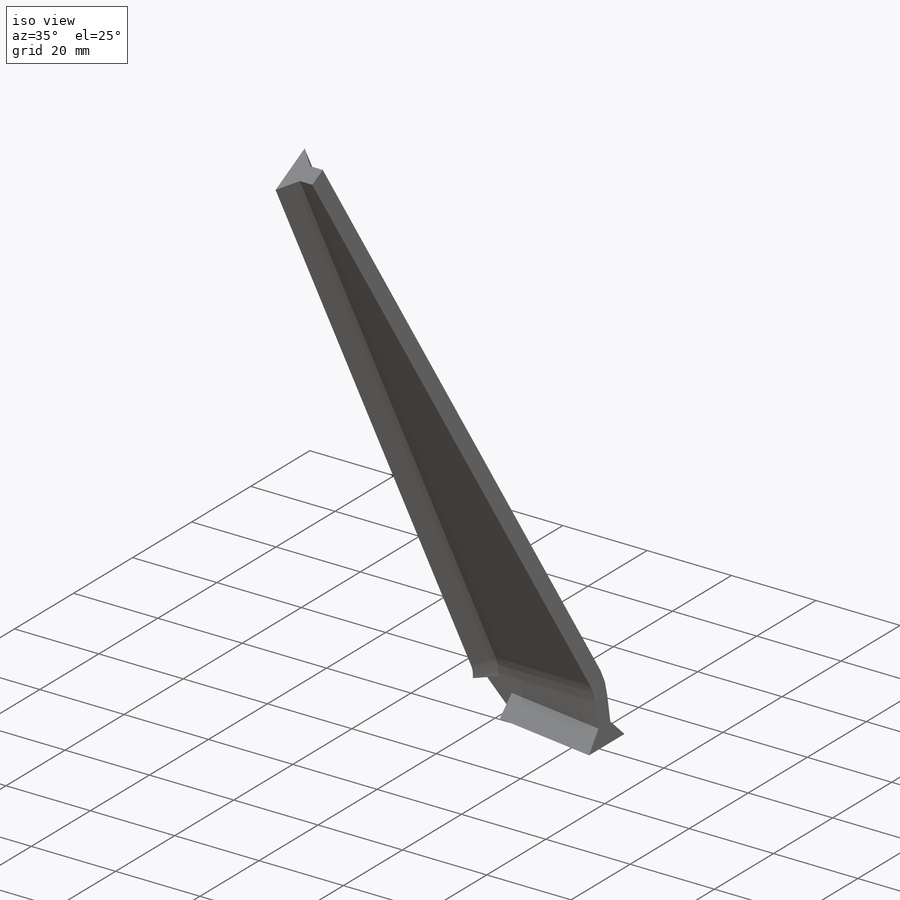
[diagram: iso view]
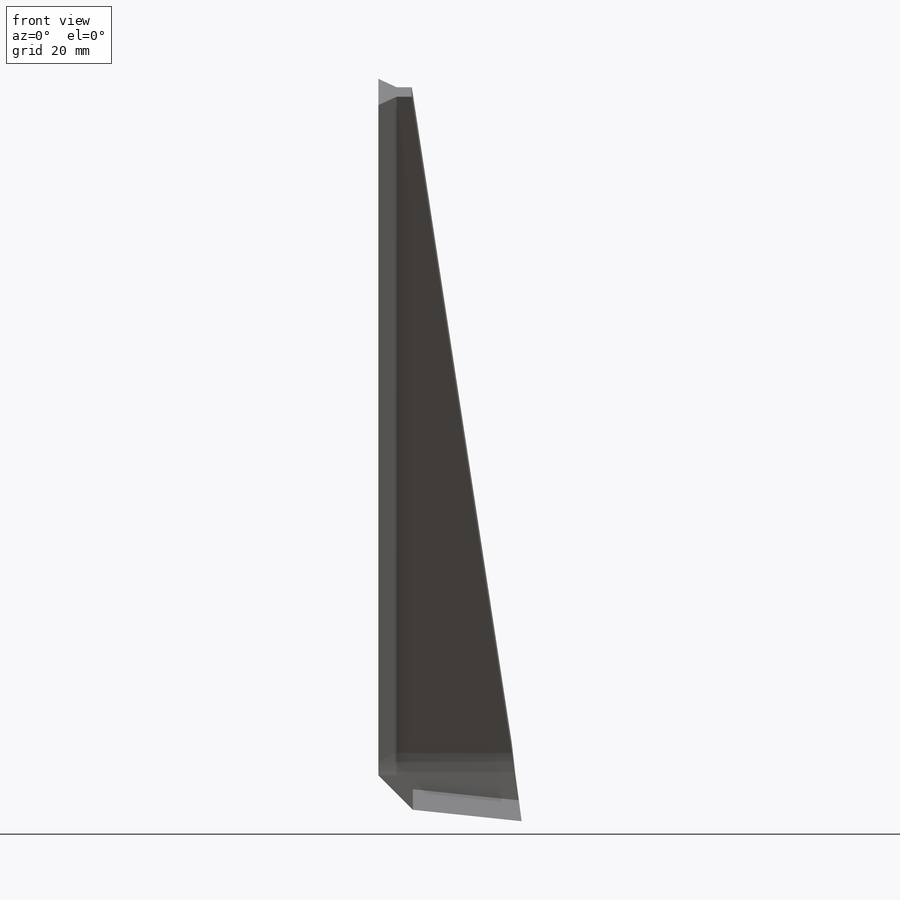
[diagram: front view]
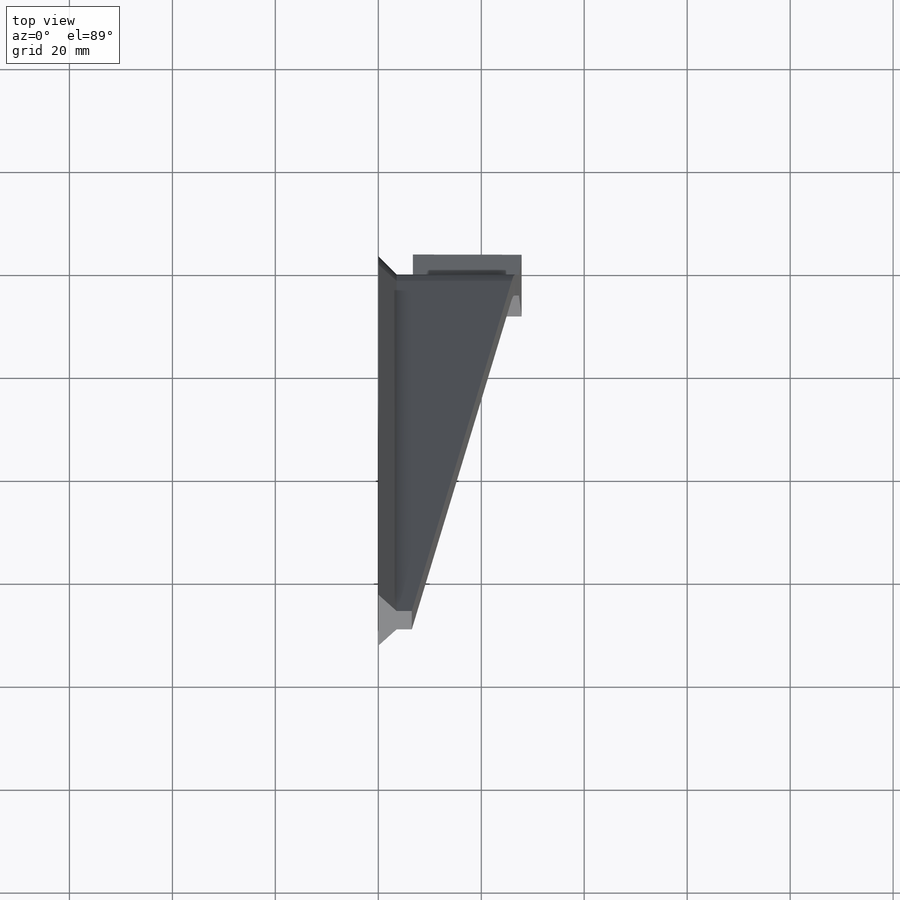
[diagram: top view]
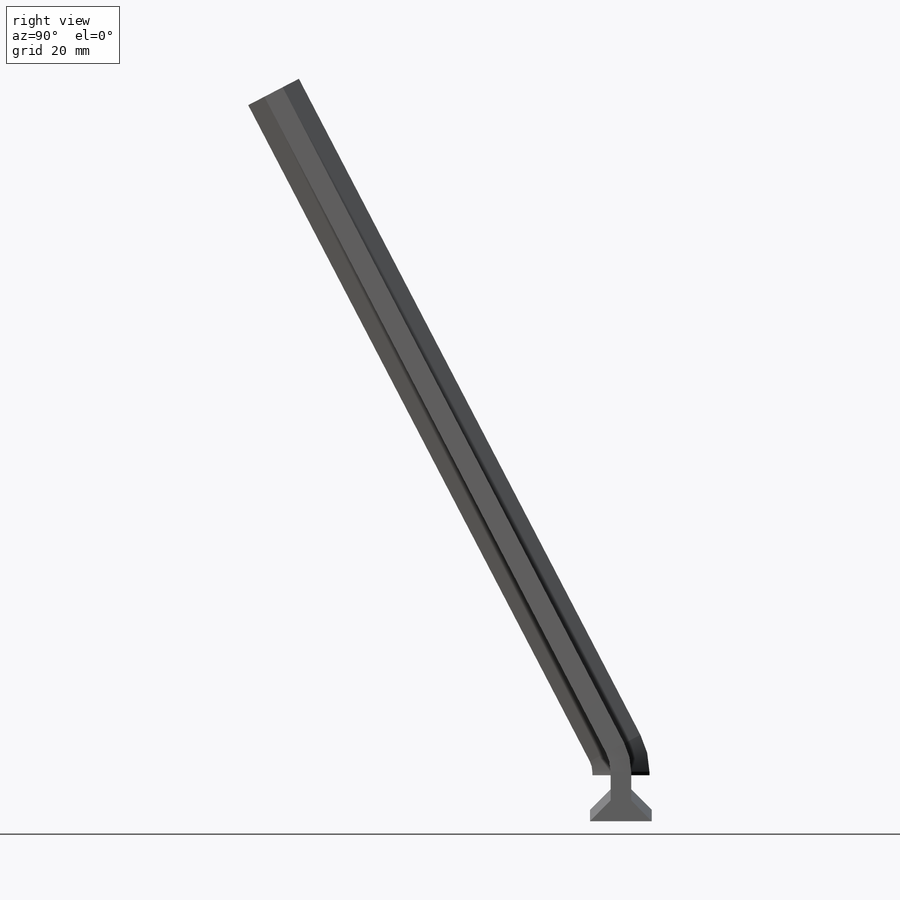
[diagram: right view]
SOLIDWORKS PART (.sldprt)
format: sldprt  version: not decoded by parser v0  size: 206,848 bytes
history: native  units: mm
features: sketch x5, plane x3, sheet_metal_op x2, material x1, chamfer x1, extrude x1, sweep x1 + 7 further entries (+9 scaffold rows collapsed)
feature tree (30):
  scaffold x9  (default folders/planes/origin — collapsed)
  material  " 09Г2С ГОСТ 4543-71"
  plane  "Спереди"
  plane  "Сверху"
  plane  "Слева"
  "Начало координат"
  "PTricksFreeParameters"
  "PTricksEqu"
  "PTricksFreeParameters"
  sketch  "Эскиз1"  dims[c1.D1=~21.525782mm c2.D1=6.5mm c2.D2=28.0mm c2.D3=155.0mm c2.D4=150.0mm c3.D4=~7.594643deg c4.D4=~134.353492mm c4.D5=28.0mm c5.D5=~1675.516082mm]
  sheet_metal_op  "Листовой металл1"  Толщина=4mm
  sheet_metal_op  "Базовая кромка1"
  sketch  "Эскиз3"  dims[D1=9.0mm D2=9.0mm D3=~2.692948mm]
  "Преобразование эскиза2"
  chamfer  "Фаска1"  Distance=6mm
  sketch  "Эскиз4"  dims[D1=4.0mm D2=4.0mm]
  extrude  "Вытянуть1"  [1 undecoded]
  sketch  "Эскиз5"
  sweep  "По траектории1"
  "Развертка1"
  sketch  "Сгиб-Линии1"
  "Преобразование эскиза1"
decode coverage: 5 of 10 modeling features carry decoded parameters; 7 rows unclassified (native names shown)
note: ~ marks probable driven/reference dimensions
note: 1 parameter value undecoded
note: suppression state not decoded; provenance and decode notes live in map.json
